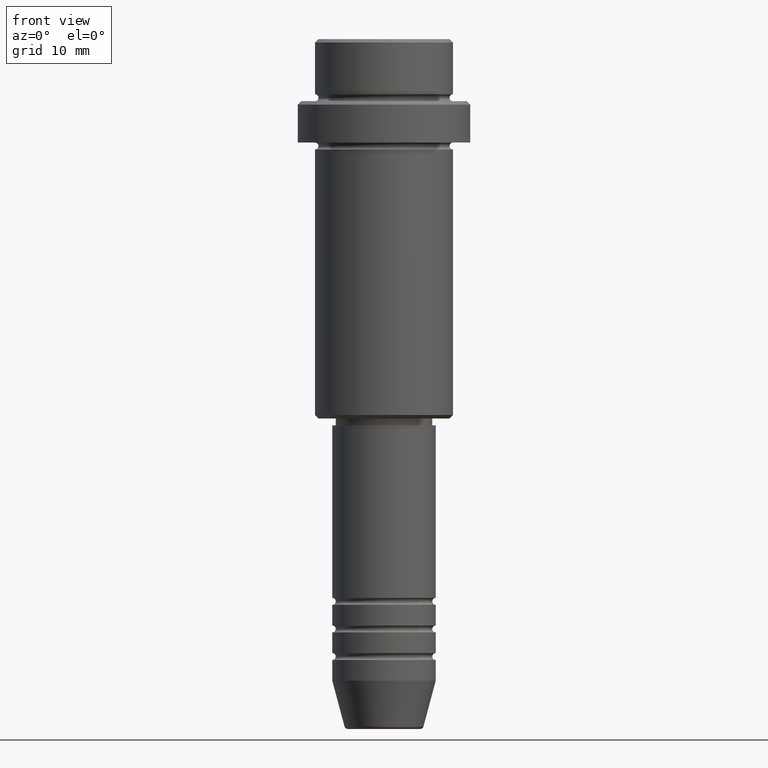
[diagram: clean part render]
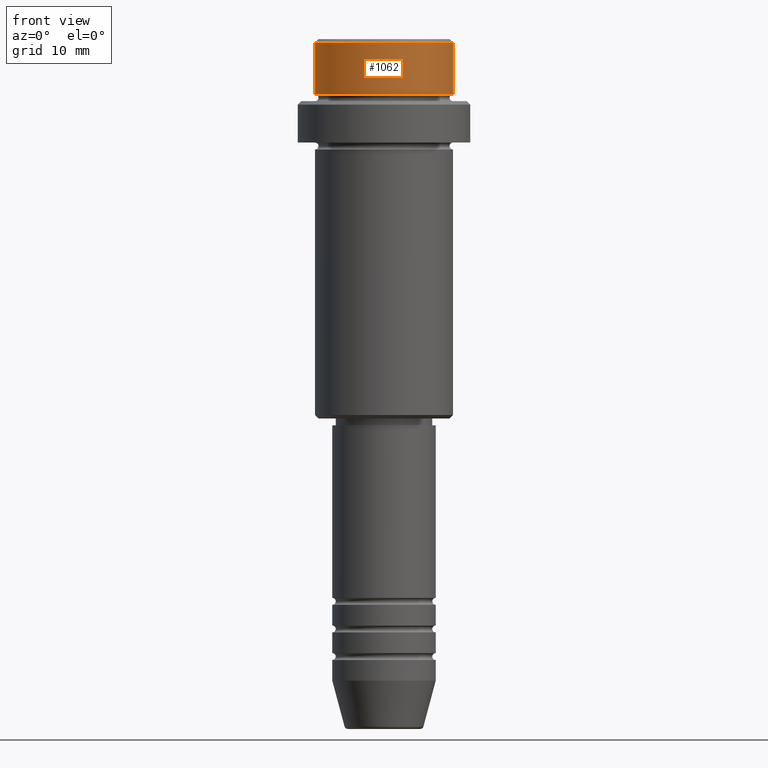
[diagram: same view with one face highlighted and labeled with its STEP entity id]
A machine part, front view. The second image highlights one B-rep face of the part: STEP entity #1062.
In plain terms, the highlighted cylindrical surface (partial cylindrical patch) has radius 10 mm, axis along (-0, -0, 1).
Its self-contained STEP definition (entity closure, byte-faithful):
#19 = ORIENTED_EDGE ( 'NONE', *, *, #1027, .F. ) ;
#43 = LINE ( 'NONE', #495, #1366 ) ;
#58 = EDGE_CURVE ( 'NONE', #750, #1374, #43, .T. ) ;
#71 = VECTOR ( 'NONE', #498, 1000.000000000000000 ) ;
#80 = FACE_OUTER_BOUND ( 'NONE', #565, .T. ) ;
#83 = EDGE_CURVE ( 'NONE', #1374, #1360, #1367, .T. ) ;
#103 = DIRECTION ( 'NONE',  ( 1.000000000000000000, 0.000000000000000000, 0.000000000000000000 ) ) ;
#144 = DIRECTION ( 'NONE',  ( 1.000000000000000000, 0.000000000000000000, 0.000000000000000000 ) ) ;
#250 = ORIENTED_EDGE ( 'NONE', *, *, #83, .T. ) ;
#252 = ORIENTED_EDGE ( 'NONE', *, *, #935, .T. ) ;
#265 = DIRECTION ( 'NONE',  ( 1.000000000000000000, 0.000000000000000000, 0.000000000000000000 ) ) ;
#375 = CARTESIAN_POINT ( 'NONE',  ( 0.000000000000000000, 0.000000000000000000, -7.999999999999998224 ) ) ;
#378 = CARTESIAN_POINT ( 'NONE',  ( -9.999999999999998224, 1.224646799147353059E-15, -0.5000000000000108802 ) ) ;
#380 = CARTESIAN_POINT ( 'NONE',  ( -9.999999999999998224, 1.224646799147353059E-15, 0.000000000000000000 ) ) ;
#390 = AXIS2_PLACEMENT_3D ( 'NONE', #490, #1161, #265 ) ;
#406 = CYLINDRICAL_SURFACE ( 'NONE', #949, 9.999999999999998224 ) ;
#490 = CARTESIAN_POINT ( 'NONE',  ( 0.000000000000000000, 0.000000000000000000, -0.5000000000000108802 ) ) ;
#495 = CARTESIAN_POINT ( 'NONE',  ( 9.999999999999998224, 0.000000000000000000, 0.000000000000000000 ) ) ;
#498 = DIRECTION ( 'NONE',  ( -0.000000000000000000, -0.000000000000000000, 1.000000000000000000 ) ) ;
#565 = EDGE_LOOP ( 'NONE', ( #19, #252, #667, #250 ) ) ;
#605 = CIRCLE ( 'NONE', #924, 9.999999999999998224 ) ;
#667 = ORIENTED_EDGE ( 'NONE', *, *, #58, .T. ) ;
#750 = VERTEX_POINT ( 'NONE', #1077 ) ;
#924 = AXIS2_PLACEMENT_3D ( 'NONE', #375, #1378, #144 ) ;
#935 = EDGE_CURVE ( 'NONE', #1148, #750, #605, .T. ) ;
#949 = AXIS2_PLACEMENT_3D ( 'NONE', #1180, #967, #103 ) ;
#967 = DIRECTION ( 'NONE',  ( -0.000000000000000000, -0.000000000000000000, 1.000000000000000000 ) ) ;
#1027 = EDGE_CURVE ( 'NONE', #1148, #1360, #1359, .T. ) ;
#1062 = ADVANCED_FACE ( 'NONE', ( #80 ), #406, .T. ) ;
#1077 = CARTESIAN_POINT ( 'NONE',  ( 9.999999999999998224, 0.000000000000000000, -7.999999999999998224 ) ) ;
#1148 = VERTEX_POINT ( 'NONE', #1172 ) ;
#1149 = DIRECTION ( 'NONE',  ( -0.000000000000000000, -0.000000000000000000, 1.000000000000000000 ) ) ;
#1161 = DIRECTION ( 'NONE',  ( 0.000000000000000000, 0.000000000000000000, -1.000000000000000000 ) ) ;
#1166 = CARTESIAN_POINT ( 'NONE',  ( 9.999999999999998224, 0.000000000000000000, -0.5000000000000108802 ) ) ;
#1172 = CARTESIAN_POINT ( 'NONE',  ( -9.999999999999998224, 1.224646799147353059E-15, -7.999999999999998224 ) ) ;
#1180 = CARTESIAN_POINT ( 'NONE',  ( 0.000000000000000000, 0.000000000000000000, 0.000000000000000000 ) ) ;
#1359 = LINE ( 'NONE', #380, #71 ) ;
#1360 = VERTEX_POINT ( 'NONE', #378 ) ;
#1366 = VECTOR ( 'NONE', #1149, 1000.000000000000000 ) ;
#1367 = CIRCLE ( 'NONE', #390, 9.999999999999998224 ) ;
#1374 = VERTEX_POINT ( 'NONE', #1166 ) ;
#1378 = DIRECTION ( 'NONE',  ( -0.000000000000000000, -0.000000000000000000, 1.000000000000000000 ) ) ;